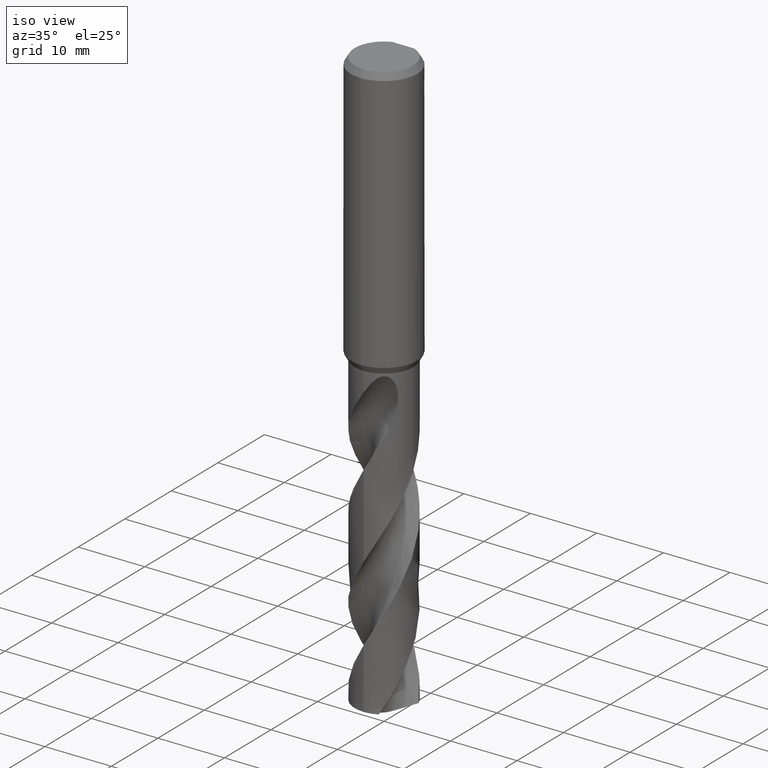
[diagram: clean part render]
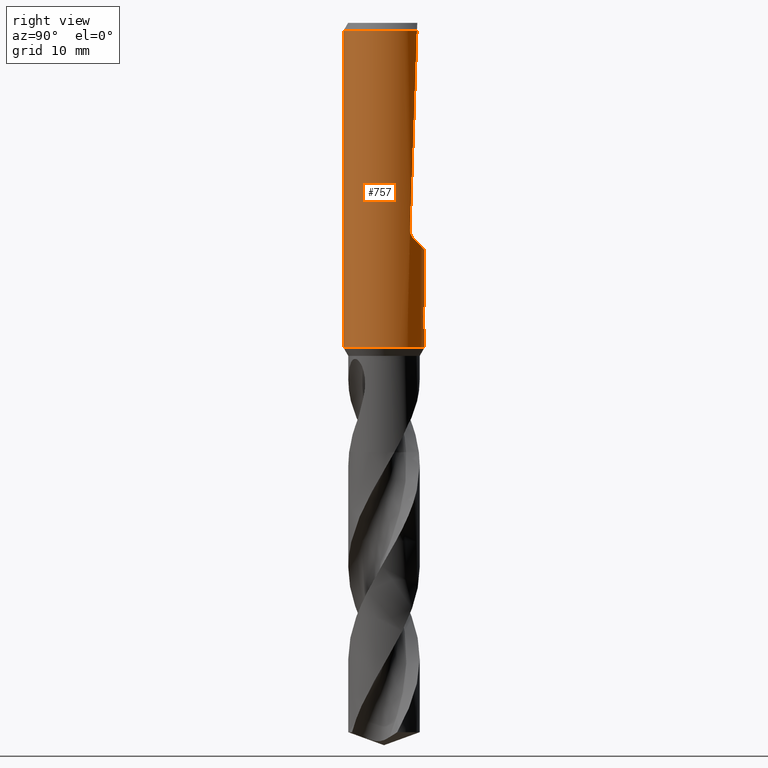
[diagram: tour spotlight — one face highlighted and labeled with its STEP entity id]
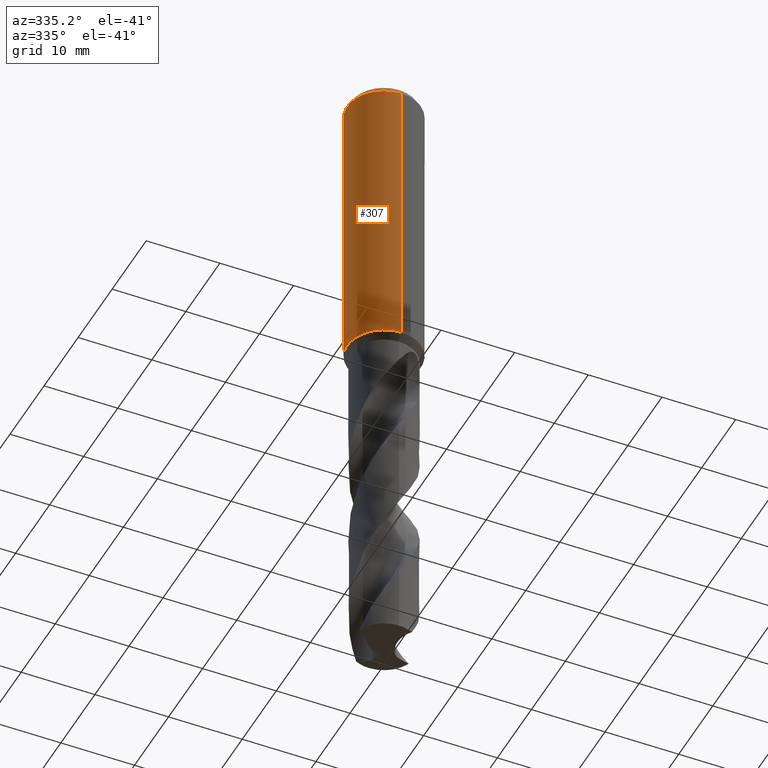
[diagram: tour spotlight — one face highlighted and labeled with its STEP entity id]
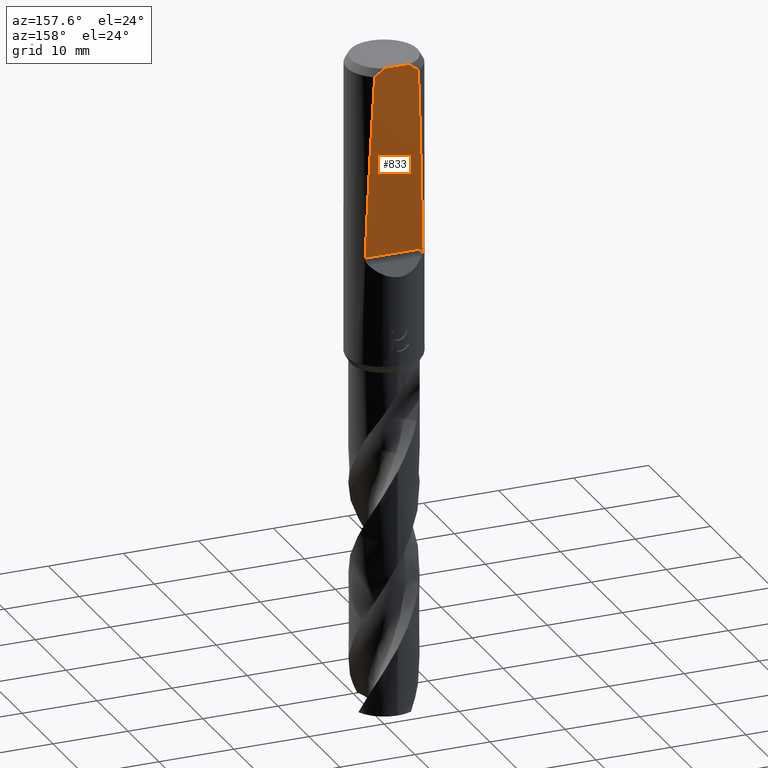
[diagram: tour spotlight — one face highlighted and labeled with its STEP entity id]
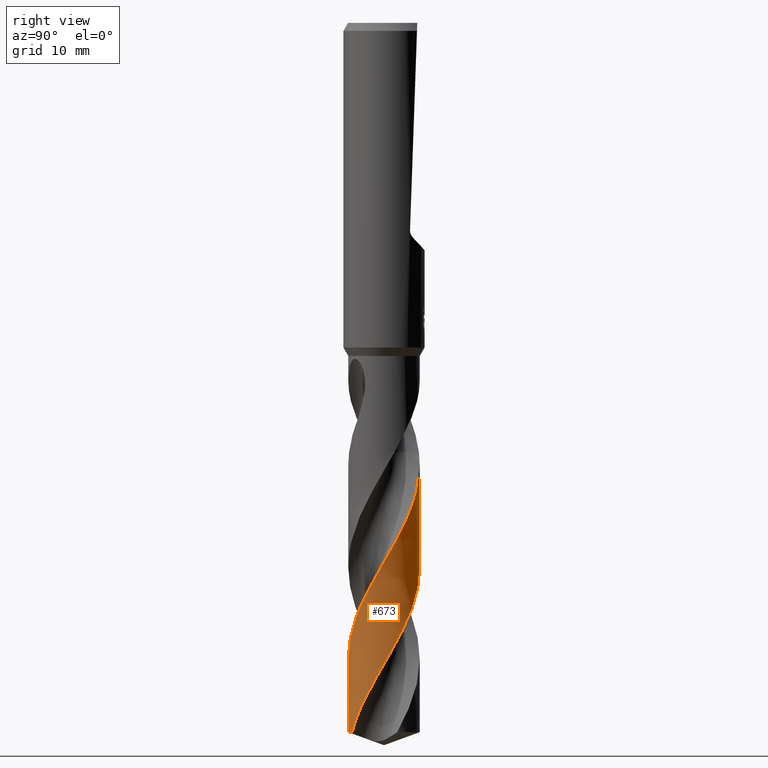
[diagram: tour spotlight — one face highlighted and labeled with its STEP entity id]
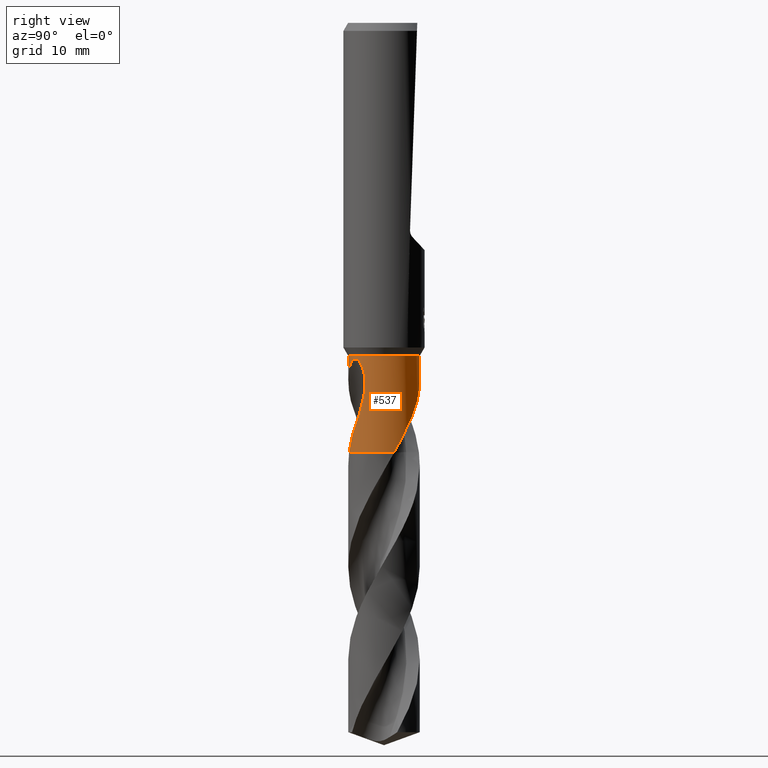
[diagram: tour spotlight — one face highlighted and labeled with its STEP entity id]
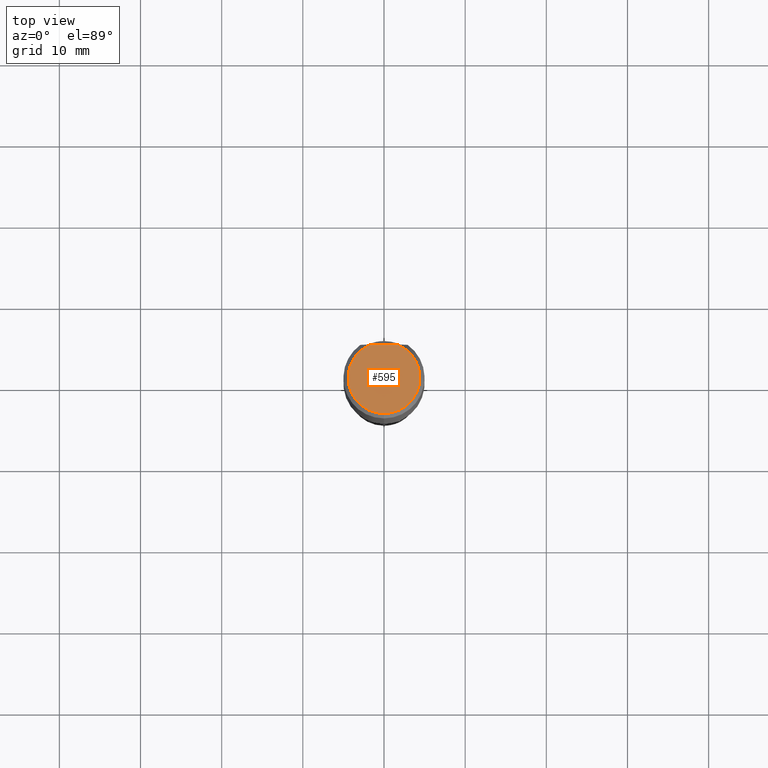
[diagram: tour spotlight — one face highlighted and labeled with its STEP entity id]
A machine part: a face-by-face anatomy tour. The part has 51 B-rep faces; the first image is the clean iso view, then the 6 largest visible faces are spotlighted one at a time (largest first), each with its STEP entity span.

Face 1 — right view, entity #757. In plain terms, the highlighted cylindrical surface (partial cylindrical patch) has radius 5 mm, axis along (-0, -0, 1).
Definition (entity closure, byte-faithful):
#305=VERTEX_POINT('',#868);
#333=VERTEX_POINT('',#899);
#345=VERTEX_POINT('',#911);
#347=EDGE_CURVE('',#507,#551,#913,.T.);
#377=VERTEX_POINT('',#948);
#393=EDGE_CURVE('',#407,#711,#966,.T.);
#407=VERTEX_POINT('',#980);
#433=EDGE_CURVE('',#687,#407,#1009,.T.);
#443=VERTEX_POINT('',#1020);
#457=EDGE_CURVE('',#377,#687,#1034,.T.);
#463=EDGE_CURVE('',#551,#345,#1042,.T.);
#465=VERTEX_POINT('',#1044);
#479=EDGE_CURVE('',#305,#443,#1058,.T.);
#495=EDGE_CURVE('',#465,#555,#1074,.T.);
#501=EDGE_CURVE('',#333,#711,#1080,.T.);
#507=VERTEX_POINT('',#1086);
#551=VERTEX_POINT('',#1133);
#555=VERTEX_POINT('',#1137);
#569=VERTEX_POINT('',#1155);
#583=EDGE_CURVE('',#625,#507,#1170,.T.);
#585=EDGE_CURVE('',#555,#625,#1172,.T.);
#597=EDGE_CURVE('',#377,#465,#1185,.T.);
#603=EDGE_CURVE('',#785,#333,#1191,.T.);
#625=VERTEX_POINT('',#1214);
#633=EDGE_CURVE('',#443,#785,#1222,.T.);
#663=EDGE_CURVE('',#345,#569,#1258,.T.);
#687=VERTEX_POINT('',#1287);
#711=VERTEX_POINT('',#1311);
#757=ADVANCED_FACE('',(#1363),#1364,.T.);
#777=EDGE_CURVE('',#305,#569,#1386,.T.);
#785=VERTEX_POINT('',#1395);
#868=CARTESIAN_POINT('',(-6.12303176911188E-016,5.0,-28.0011862850709));
#899=CARTESIAN_POINT('',(2.91341920609476,4.0634946203432,-1.0));
#911=CARTESIAN_POINT('',(0.799431726384364,4.93567714856332,-35.000000276873));
#913=LINE('',#1623,#1624);
#948=CARTESIAN_POINT('',(-4.2179236924284E-015,5.0,-38.0310253601033));
#966=LINE('',#4296,#4297);
#980=CARTESIAN_POINT('',(6.12303176911189E-016,-5.0,-40.0));
#1009=CIRCLE('',#4473,5.0);
#1020=CARTESIAN_POINT('',(3.54362577285888,3.52742347641027,-26.4220412980564));
#1034=LINE('',#4786,#4787);
#1042=B_SPLINE_CURVE_WITH_KNOTS('',3,(#4796,#4797,#4798,#4799,#4800,#4801,#4802,#4803,#4804,#4805),.UNSPECIFIED.,.F.,.F.,(4,2,2,2,4),(0.618463277568802,0.927694916353203,1.2369265551376,1.54583876733634,1.85475097953508),.UNSPECIFIED.);
#1044=CARTESIAN_POINT('',(0.29010312703583,4.99157692274536,-37.9998328990228));
#1058=ELLIPSE('',#4881,7.33139592819812,5.0);
#1074=ELLIPSE('',#4902,15.2399728668489,5.0);
#1080=CIRCLE('',#4911,5.0);
#1086=CARTESIAN_POINT('',(1.33721006514658,4.81786978255646,-37.2901657003257));
#1133=CARTESIAN_POINT('',(1.33721006514658,4.81786978255647,-35.5150484364821));
#1137=CARTESIAN_POINT('',(0.873560781758957,4.92309776061503,-36.3198931596091));
#1155=CARTESIAN_POINT('',(-9.82055749138764E-015,5.0,-36.0232688117743));
#1170=B_SPLINE_CURVE_WITH_KNOTS('',3,(#5165,#5166,#5167,#5168,#5169,#5170,#5171,#5172,#5173,#5174),.UNSPECIFIED.,.F.,.F.,(4,2,2,2,4),(8.03978938391207,8.34870158568316,8.65761378745426,8.96684541549285,9.27607704353144),.UNSPECIFIED.);
#1172=LINE('',#5177,#5178);
#1185=B_SPLINE_CURVE_WITH_KNOTS('',3,(#5286,#5287,#5288,#5289,#5290,#5291,#5292,#5293,#5294,#5295,#5296,#5297,#5298,#5299,#5300,#5301),.UNSPECIFIED.,.F.,.F.,(4,2,2,2,2,2,2,4),(5.87517564836087,6.18447732711524,6.49384941721167,6.80322150730809,7.11259359740452,7.42196568750094,7.73087791711931,8.03979014673767),.UNSPECIFIED.);
#1191=ELLIPSE('',#5342,143.26854173922,5.0);
#1214=CARTESIAN_POINT('',(0.873560781758956,4.92309776061503,-37.7587351791531));
#1222=B_SPLINE_CURVE_WITH_KNOTS('',3,(#5403,#5404,#5405,#5406,#5407,#5408,#5409,#5410,#5411,#5412),.UNSPECIFIED.,.F.,.F.,(4,2,2,2,4),(13.601244724545,13.9877201562878,14.2781014313783,14.5684827064689,14.8588639815594),.UNSPECIFIED.);
#1258=B_SPLINE_CURVE_WITH_KNOTS('',3,(#6075,#6076,#6077,#6078,#6079,#6080,#6081,#6082,#6083,#6084,#6085,#6086,#6087,#6088,#6089,#6090,#6091,#6092,#6093,#6094,#6095,#6096,#6097,#6098,#6099,#6100,#6101),.UNSPECIFIED.,.F.,.F.,(4,2,3,2,2,2,2,2,2,2,2,2,4),(-0.542486104801738,-0.271243052400869,0.0,0.271243052400869,0.542486104801738,0.814298814936944,1.08611152507215,1.35696845964793,1.62782539422372,1.89896433698445,2.17010327974519,2.44124222250593,2.71238116526667),.UNSPECIFIED.);
#1287=CARTESIAN_POINT('',(0.0,5.0,-40.0));
#1311=CARTESIAN_POINT('',(6.12303176911189E-016,-5.0,-1.0));
#1363=FACE_OUTER_BOUND('',#7732,.T.);
#1364=CYLINDRICAL_SURFACE('',#7733,5.0);
#1386=LINE('',#7782,#7783);
#1395=CARTESIAN_POINT('',(3.83705374969661,3.20577892593035,-25.5617638699384));
#1623=CARTESIAN_POINT('',(1.33721006514658,4.81786978255646,-36.4026070684039));
#1624=VECTOR('',#8611,1.0);
#4296=CARTESIAN_POINT('',(6.12303176911189E-016,-5.0,-20.5));
#4297=VECTOR('',#8659,1.0);
#4473=AXIS2_PLACEMENT_3D('',#8696,#8697,#8698);
#4786=CARTESIAN_POINT('',(-6.12303176911189E-016,5.0,-20.5));
#4787=VECTOR('',#8708,1.0);
#4796=CARTESIAN_POINT('',(1.47544634459503,4.77734843655151,-35.7772211678144));
#4797=CARTESIAN_POINT('',(1.43377097583397,4.79021953600577,-35.6770080394811));
#4798=CARTESIAN_POINT('',(1.38199542398865,4.8056132724731,-35.5811155297459));
#4799=CARTESIAN_POINT('',(1.26262396572432,4.83834796156109,-35.4039520264488));
#4800=CARTESIAN_POINT('',(1.19501792490561,4.8556548500921,-35.3226815690952));
#4801=CARTESIAN_POINT('',(1.05119213349515,4.88880718633437,-35.178908059153));
#4802=CARTESIAN_POINT('',(0.969955783216372,4.90584149133193,-35.1113633587199));
#4803=CARTESIAN_POINT('',(0.792829662772183,4.93756175507685,-34.9920776587655));
#4804=CARTESIAN_POINT('',(0.696940397087141,4.95221768350352,-34.9403279265819));
#4805=CARTESIAN_POINT('',(0.596736525802593,4.96426283739822,-34.8986787609541));
#4881=AXIS2_PLACEMENT_3D('',#8729,#8730,#8731);
#4902=AXIS2_PLACEMENT_3D('',#8744,#8745,#8746);
#4911=AXIS2_PLACEMENT_3D('',#8748,#8749,#8750);
#5165=CARTESIAN_POINT('',(0.596736548110758,4.96426283471664,-37.9065353597382));
#5166=CARTESIAN_POINT('',(0.696940415976904,4.95221768077604,-37.8648861955132));
#5167=CARTESIAN_POINT('',(0.792829678386026,4.93756175251447,-37.8131364650754));
#5168=CARTESIAN_POINT('',(0.969955792779445,4.90584148938556,-37.6938507691423));
#5169=CARTESIAN_POINT('',(1.05119214028325,4.88880718483703,-37.6263060709848));
#5170=CARTESIAN_POINT('',(1.1950179267128,4.85565484960812,-37.4825325659411));
#5171=CARTESIAN_POINT('',(1.26262396516471,4.83834796167932,-37.4012621113954));
#5172=CARTESIAN_POINT('',(1.38199541925443,4.80561327380657,-37.2240986142183));
#5173=CARTESIAN_POINT('',(1.4337709692914,4.79021953794996,-37.1282061077952));
#5174=CARTESIAN_POINT('',(1.47544633659597,4.77734843902196,-37.0279929829259));
#5177=CARTESIAN_POINT('',(0.873560781758957,4.92309776061503,-37.0393141693811));
#5178=VECTOR('',#8871,1.0);
#5286=CARTESIAN_POINT('',(-1.37919625933141,4.80601890115366,-37.3124404256203));
#5287=CARTESIAN_POINT('',(-1.31957521374487,4.82312851403775,-37.4009601597598));
#5288=CARTESIAN_POINT('',(-1.25205684175205,4.84126211135571,-37.4821654513649));
#5289=CARTESIAN_POINT('',(-1.10836495207318,4.87616599259845,-37.6259115514073));
#5290=CARTESIAN_POINT('',(-1.0271524301646,4.89418890879516,-37.693486795378));
#5291=CARTESIAN_POINT('',(-0.850055905397219,4.9280353232664,-37.8128453591325));
#5292=CARTESIAN_POINT('',(-0.754172188044363,4.94382885968066,-37.8646375967458));
#5293=CARTESIAN_POINT('',(-0.553725999780852,4.97027232652294,-37.9480281920328));
#5294=CARTESIAN_POINT('',(-0.448990720596507,4.98092390938096,-37.9796924022892));
#5295=CARTESIAN_POINT('',(-0.237871423561604,4.99545922254228,-38.0213202804398));
#5296=CARTESIAN_POINT('',(-0.13148454027928,4.99933459384723,-38.0312723335086));
#5297=CARTESIAN_POINT('',(0.0746069172274575,5.00050365281921,-38.0312723335086));
#5298=CARTESIAN_POINT('',(0.180879006433096,4.99784409598263,-38.021349312763));
#5299=CARTESIAN_POINT('',(0.391840688075154,4.98574204084828,-37.9798000876985));
#5300=CARTESIAN_POINT('',(0.496532945230264,4.97630796240248,-37.9481849619546));
#5301=CARTESIAN_POINT('',(0.596736821506944,4.96426280185264,-37.9065357940623));
#5342=AXIS2_PLACEMENT_3D('',#8883,#8884,#8885);
#5403=CARTESIAN_POINT('',(3.5124810915168,3.55843737920691,-26.4540846778413));
#5404=CARTESIAN_POINT('',(3.59343628541809,3.47852767883522,-26.3745350059696));
#5405=CARTESIAN_POINT('',(3.66218514708417,3.40501531873085,-26.2774092731815));
#5406=CARTESIAN_POINT('',(3.75097198391672,3.30657581587786,-26.0948429812535));
#5407=CARTESIAN_POINT('',(3.78395006128267,3.26846099380161,-26.0018104981297));
#5408=CARTESIAN_POINT('',(3.82727183139471,3.21762421227073,-25.8046209150592));
#5409=CARTESIAN_POINT('',(3.83766437316493,3.20504791835327,-25.7004370243449));
#5410=CARTESIAN_POINT('',(3.83766437316493,3.20504791835327,-25.5068495076179));
#5411=CARTESIAN_POINT('',(3.82727183139471,3.21762421227073,-25.4026656169036));
#5412=CARTESIAN_POINT('',(3.80561094633861,3.24304260303619,-25.3040708253683));
#6075=CARTESIAN_POINT('',(0.665122770091172,4.95556371169883,-34.8135963457478));
#6076=CARTESIAN_POINT('',(0.728735196954596,4.94702581852882,-34.8772777273236));
#6077=CARTESIAN_POINT('',(0.783964166103465,4.93829748078097,-34.9579436035979));
#6078=CARTESIAN_POINT('',(0.857301933462898,4.92609533329604,-35.1349114173306));
#6079=CARTESIAN_POINT('',(0.875400981188567,4.92277087849253,-35.2312276617865));
#6080=CARTESIAN_POINT('',(0.875400981188567,4.92277087849253,-35.3216420125868));
#6081=CARTESIAN_POINT('',(0.875400981188567,4.92277087849253,-35.4120563633871));
#6082=CARTESIAN_POINT('',(0.857301933462898,4.92609533329604,-35.5083726078429));
#6083=CARTESIAN_POINT('',(0.783964166103465,4.93829748078097,-35.6853404215757));
#6084=CARTESIAN_POINT('',(0.728735196954596,4.94702581852882,-35.76600629785));
#6085=CARTESIAN_POINT('',(0.601376746032753,4.96411953593411,-35.8935028030135));
#6086=CARTESIAN_POINT('',(0.520641197115554,4.97361399538109,-35.9488552844728));
#6087=CARTESIAN_POINT('',(0.343503822480858,4.98897870858442,-36.0223670116056));
#6088=CARTESIAN_POINT('',(0.247086219827461,4.9947129574863,-36.0405166027747));
#6089=CARTESIAN_POINT('',(0.0662849978754683,5.00037576555244,-36.0405166027747));
#6090=CARTESIAN_POINT('',(-0.0299853354073752,5.00069421157822,-36.022481035651));
#6091=CARTESIAN_POINT('',(-0.207042529230845,4.99649628332508,-35.9491606175219));
#6092=CARTESIAN_POINT('',(-0.287834149954029,4.99211780487336,-35.8938794313977));
#6093=CARTESIAN_POINT('',(-0.415469449620835,4.98311973872716,-35.7663325263823));
#6094=CARTESIAN_POINT('',(-0.470822894462521,4.97792007270922,-35.6855206130663));
#6095=CARTESIAN_POINT('',(-0.544264412763406,4.97042641093864,-35.5083690868499));
#6096=CARTESIAN_POINT('',(-0.562348199187247,4.96827580785033,-35.4120216601737));
#6097=CARTESIAN_POINT('',(-0.562348199187247,4.96827580785033,-35.2312623649999));
#6098=CARTESIAN_POINT('',(-0.544264412763406,4.97042641093864,-35.1349149383237));
#6099=CARTESIAN_POINT('',(-0.470822894462521,4.97792007270922,-34.9577634121072));
#6100=CARTESIAN_POINT('',(-0.415469449620836,4.98311973872716,-34.8769514987913));
#6101=CARTESIAN_POINT('',(-0.351618594554054,4.98762111271133,-34.8131448640467));
#7732=EDGE_LOOP('',(#9064,#9065,#9066,#9067,#9068,#9069,#9070,#9071,#9072,#9073,#9074,#9075,#9076,#9077,#9078));
#7733=AXIS2_PLACEMENT_3D('',#9079,#9080,#9081);
#7782=CARTESIAN_POINT('',(-6.12303176911189E-016,5.0,-20.5));
#7783=VECTOR('',#9101,1.0);
#8611=DIRECTION('',(-0.0,-0.0,1.0));
#8659=DIRECTION('',(-0.0,-0.0,1.0));
#8696=CARTESIAN_POINT('',(0.0,0.0,-40.0));
#8697=DIRECTION('',(0.0,0.0,-1.0));
#8698=DIRECTION('',(0.0,1.0,0.0));
#8708=DIRECTION('',(0.0,0.0,-1.0));
#8729=CARTESIAN_POINT('',(0.0,0.0,-22.6393427349475));
#8730=DIRECTION('',(0.0,-0.73135370161917,-0.681998360062499));
#8731=DIRECTION('',(0.0,0.681998360062499,-0.73135370161917));
#8744=CARTESIAN_POINT('',(0.0,0.0,-38.8351219173269));
#8745=DIRECTION('',(0.944648353914092,0.0,-0.328084573619969));
#8746=DIRECTION('',(0.328084573619969,-0.0,0.944648353914092));
#8748=CARTESIAN_POINT('',(0.0,0.0,-1.0));
#8749=DIRECTION('',(0.0,0.0,-1.0));
#8750=DIRECTION('',(0.0,1.0,0.0));
#8871=DIRECTION('',(0.0,0.0,-1.0));
#8883=CARTESIAN_POINT('',(0.0,0.0,-117.363261161914));
#8884=DIRECTION('',(0.0,-0.999390827019096,0.0348994967025007));
#8885=DIRECTION('',(0.0,0.0348994967025007,0.999390827019096));
#9064=ORIENTED_EDGE('',*,*,#777,.F.);
#9065=ORIENTED_EDGE('',*,*,#479,.T.);
#9066=ORIENTED_EDGE('',*,*,#633,.T.);
#9067=ORIENTED_EDGE('',*,*,#603,.T.);
#9068=ORIENTED_EDGE('',*,*,#501,.T.);
#9069=ORIENTED_EDGE('',*,*,#393,.F.);
#9070=ORIENTED_EDGE('',*,*,#433,.F.);
#9071=ORIENTED_EDGE('',*,*,#457,.F.);
#9072=ORIENTED_EDGE('',*,*,#597,.T.);
#9073=ORIENTED_EDGE('',*,*,#495,.T.);
#9074=ORIENTED_EDGE('',*,*,#585,.T.);
#9075=ORIENTED_EDGE('',*,*,#583,.T.);
#9076=ORIENTED_EDGE('',*,*,#347,.T.);
#9077=ORIENTED_EDGE('',*,*,#463,.T.);
#9078=ORIENTED_EDGE('',*,*,#663,.T.);
#9079=CARTESIAN_POINT('',(0.0,0.0,-20.5));
#9080=DIRECTION('',(-0.0,-0.0,1.0));
#9081=DIRECTION('',(0.0,1.0,0.0));
#9101=DIRECTION('',(0.0,0.0,-1.0));

Face 2 — auxiliary view, entity #307. In plain terms, the highlighted cylindrical surface (partial cylindrical patch) has radius 5 mm, axis along (-0, -0, 1).
Definition (entity closure, byte-faithful):
#305=VERTEX_POINT('',#868);
#307=ADVANCED_FACE('',(#870),#871,.T.);
#363=EDGE_CURVE('',#759,#487,#933,.T.);
#365=VERTEX_POINT('',#935);
#373=VERTEX_POINT('',#944);
#377=VERTEX_POINT('',#948);
#381=EDGE_CURVE('',#373,#365,#952,.T.);
#393=EDGE_CURVE('',#407,#711,#966,.T.);
#403=VERTEX_POINT('',#976);
#407=VERTEX_POINT('',#980);
#455=VERTEX_POINT('',#1032);
#457=EDGE_CURVE('',#377,#687,#1034,.T.);
#481=EDGE_CURVE('',#365,#305,#1060,.T.);
#483=EDGE_CURVE('',#711,#615,#1062,.T.);
#487=VERTEX_POINT('',#1066);
#535=VERTEX_POINT('',#1115);
#559=EDGE_CURVE('',#615,#373,#1142,.T.);
#569=VERTEX_POINT('',#1155);
#579=EDGE_CURVE('',#455,#403,#1165,.T.);
#593=EDGE_CURVE('',#569,#535,#1180,.T.);
#615=VERTEX_POINT('',#1203);
#647=EDGE_CURVE('',#403,#377,#1238,.T.);
#687=VERTEX_POINT('',#1287);
#689=EDGE_CURVE('',#407,#687,#1289,.T.);
#711=VERTEX_POINT('',#1311);
#759=VERTEX_POINT('',#1366);
#777=EDGE_CURVE('',#305,#569,#1386,.T.);
#781=EDGE_CURVE('',#807,#759,#1390,.T.);
#787=EDGE_CURVE('',#535,#807,#1397,.T.);
#805=EDGE_CURVE('',#487,#455,#1416,.T.);
#807=VERTEX_POINT('',#1418);
#868=CARTESIAN_POINT('',(-6.12303176911188E-016,5.0,-28.0011862850709));
#870=FACE_OUTER_BOUND('',#1476,.T.);
#871=CYLINDRICAL_SURFACE('',#1477,5.0);
#933=B_SPLINE_CURVE_WITH_KNOTS('',3,(#3067,#3068,#3069,#3070,#3071,#3072,#3073,#3074,#3075,#3076,#3077,#3078,#3079,#3080),.UNSPECIFIED.,.F.,.F.,(4,2,2,2,2,2,4),(3.1333306003147,3.58067338374496,4.02801616717522,4.47535895060548,4.92178692976237,5.36821490891926,5.81712521768469),.UNSPECIFIED.);
#935=CARTESIAN_POINT('',(-3.54362577285888,3.52742347641027,-26.4220412980564));
#944=CARTESIAN_POINT('',(-3.83705374969661,3.20577892593035,-25.5617638699384));
#948=CARTESIAN_POINT('',(-4.2179236924284E-015,5.0,-38.0310253601033));
#952=B_SPLINE_CURVE_WITH_KNOTS('',3,(#3698,#3699,#3700,#3701,#3702,#3703,#3704,#3705,#3706,#3707),.UNSPECIFIED.,.F.,.F.,(4,2,2,2,4),(4.56577962706575,4.85616090215628,5.14654217724682,5.43692345233735,5.82339888408011),.UNSPECIFIED.);
#966=LINE('',#4296,#4297);
#976=CARTESIAN_POINT('',(-1.337052752443,4.81791344226778,-37.3720803908795));
#980=CARTESIAN_POINT('',(6.12303176911189E-016,-5.0,-40.0));
#1032=CARTESIAN_POINT('',(-9.69542443632267E-016,5.0,-36.7128911336578));
#1034=LINE('',#4786,#4787);
#1060=ELLIPSE('',#4884,7.33139592819812,5.0);
#1062=CIRCLE('',#4887,5.0);
#1066=CARTESIAN_POINT('',(-1.03127136200798E-015,5.0,-36.5000801551882));
#1115=CARTESIAN_POINT('',(-0.486378944383044,4.97628732314171,-35.6432837483006));
#1142=ELLIPSE('',#5122,143.26854173922,5.0);
#1155=CARTESIAN_POINT('',(-9.82055749138764E-015,5.0,-36.0232688117743));
#1165=ELLIPSE('',#5159,5.5746421602143,5.0);
#1180=B_SPLINE_CURVE_WITH_KNOTS('',3,(#5254,#5255,#5256,#5257,#5258,#5259,#5260,#5261,#5262,#5263,#5264,#5265,#5266,#5267,#5268,#5269,#5270,#5271,#5272,#5273,#5274,#5275,#5276,#5277,#5278,#5279,#5280),.UNSPECIFIED.,.F.,.F.,(4,2,3,2,2,2,2,2,2,2,2,2,4),(-0.542486104801738,-0.271243052400869,0.0,0.271243052400869,0.542486104801738,0.814298814936944,1.08611152507215,1.35696845964793,1.62782539422372,1.89896433698445,2.17010327974519,2.44124222250593,2.71238116526667),.UNSPECIFIED.);
#1203=CARTESIAN_POINT('',(-2.91341920609476,4.0634946203432,-1.0));
#1238=B_SPLINE_CURVE_WITH_KNOTS('',3,(#5453,#5454,#5455,#5456,#5457,#5458,#5459,#5460,#5461,#5462,#5463,#5464,#5465,#5466,#5467,#5468),.UNSPECIFIED.,.F.,.F.,(4,2,2,2,2,2,2,4),(5.87517564836087,6.18447732711524,6.49384941721167,6.80322150730809,7.11259359740452,7.42196568750094,7.73087791711931,8.03979014673767),.UNSPECIFIED.);
#1287=CARTESIAN_POINT('',(0.0,5.0,-40.0));
#1289=CIRCLE('',#6143,5.0);
#1311=CARTESIAN_POINT('',(6.12303176911189E-016,-5.0,-1.0));
#1366=CARTESIAN_POINT('',(-1.0350734039088,4.89168918151191,-35.3171221986971));
#1386=LINE('',#7782,#7783);
#1390=CIRCLE('',#7788,5.0);
#1397=B_SPLINE_CURVE_WITH_KNOTS('',3,(#8011,#8012,#8013,#8014,#8015,#8016,#8017,#8018,#8019,#8020,#8021,#8022,#8023,#8024,#8025,#8026,#8027,#8028,#8029,#8030,#8031,#8032,#8033,#8034,#8035,#8036,#8037),.UNSPECIFIED.,.F.,.F.,(4,2,3,2,2,2,2,2,2,2,2,2,4),(-0.542486104801738,-0.271243052400869,0.0,0.271243052400869,0.542486104801738,0.814298814936944,1.08611152507215,1.35696845964793,1.62782539422372,1.89896433698445,2.17010327974519,2.44124222250593,2.71238116526667),.UNSPECIFIED.);
#1416=LINE('',#8061,#8062);
#1418=CARTESIAN_POINT('',(-0.562333990228013,4.96827741611056,-35.3171221986971));
#1476=EDGE_LOOP('',(#8564,#8565,#8566,#8567,#8568,#8569,#8570,#8571,#8572,#8573,#8574,#8575,#8576,#8577,#8578));
#1477=AXIS2_PLACEMENT_3D('',#8579,#8580,#8581);
#3067=CARTESIAN_POINT('',(-0.94469265800956,4.90994458032907,-34.8726918261735));
#3068=CARTESIAN_POINT('',(-1.00520381961469,4.89830199881157,-35.0184504386447));
#3069=CARTESIAN_POINT('',(-1.03510901790186,4.89168164551397,-35.1771875995894));
#3070=CARTESIAN_POINT('',(-1.03510901790186,4.89168164551397,-35.4754161218762));
#3071=CARTESIAN_POINT('',(-1.00520381961469,4.89830199881157,-35.6341532828209));
#3072=CARTESIAN_POINT('',(-0.884181496404448,4.92158716184659,-35.9256705077633));
#3073=CARTESIAN_POINT('',(-0.793087151052211,4.93783860177885,-36.058492898329));
#3074=CARTESIAN_POINT('',(-0.583306946064695,4.96698544190891,-36.2680190096183));
#3075=CARTESIAN_POINT('',(-0.4505605241988,4.98179488059623,-36.3589053581256));
#3076=CARTESIAN_POINT('',(-0.159315965562919,4.99959032724121,-36.4795914963682));
#3077=CARTESIAN_POINT('',(-0.000786407488332613,5.0022138695964,-36.5093686300866));
#3078=CARTESIAN_POINT('',(0.297528991236319,4.99338238693841,-36.5093686300866));
#3079=CARTESIAN_POINT('',(0.45644235283975,4.98128588348605,-36.4792943689047));
#3080=CARTESIAN_POINT('',(0.602168559078807,4.96360685655673,-36.4187026676641));
#3698=CARTESIAN_POINT('',(-3.80561094633861,3.24304260303619,-25.3040708253683));
#3699=CARTESIAN_POINT('',(-3.82727183139471,3.21762421227073,-25.4026656169036));
#3700=CARTESIAN_POINT('',(-3.83766437316493,3.20504791835327,-25.5068495076179));
#3701=CARTESIAN_POINT('',(-3.83766437316493,3.20504791835327,-25.7004370243449));
#3702=CARTESIAN_POINT('',(-3.82727183139471,3.21762421227073,-25.8046209150592));
#3703=CARTESIAN_POINT('',(-3.78395006128267,3.26846099380161,-26.0018104981297));
#3704=CARTESIAN_POINT('',(-3.75097198391672,3.30657581587786,-26.0948429812535));
#3705=CARTESIAN_POINT('',(-3.66218514708417,3.40501531873085,-26.2774092731815));
#3706=CARTESIAN_POINT('',(-3.59343628541809,3.47852767883522,-26.3745350059696));
#3707=CARTESIAN_POINT('',(-3.5124810915168,3.55843737920691,-26.4540846778413));
#4296=CARTESIAN_POINT('',(6.12303176911189E-016,-5.0,-20.5));
#4297=VECTOR('',#8659,1.0);
#4786=CARTESIAN_POINT('',(-6.12303176911189E-016,5.0,-20.5));
#4787=VECTOR('',#8708,1.0);
#4884=AXIS2_PLACEMENT_3D('',#8732,#8733,#8734);
#4887=AXIS2_PLACEMENT_3D('',#8735,#8736,#8737);
#5122=AXIS2_PLACEMENT_3D('',#8811,#8812,#8813);
#5159=AXIS2_PLACEMENT_3D('',#8861,#8862,#8863);
#5254=CARTESIAN_POINT('',(0.665122770091172,4.95556371169883,-34.8135963457478));
#5255=CARTESIAN_POINT('',(0.728735196954596,4.94702581852882,-34.8772777273236));
#5256=CARTESIAN_POINT('',(0.783964166103465,4.93829748078097,-34.9579436035979));
#5257=CARTESIAN_POINT('',(0.857301933462898,4.92609533329604,-35.1349114173306));
#5258=CARTESIAN_POINT('',(0.875400981188567,4.92277087849253,-35.2312276617865));
#5259=CARTESIAN_POINT('',(0.875400981188567,4.92277087849253,-35.3216420125868));
#5260=CARTESIAN_POINT('',(0.875400981188567,4.92277087849253,-35.4120563633871));
#5261=CARTESIAN_POINT('',(0.857301933462898,4.92609533329604,-35.5083726078429));
#5262=CARTESIAN_POINT('',(0.783964166103465,4.93829748078097,-35.6853404215757));
#5263=CARTESIAN_POINT('',(0.728735196954596,4.94702581852882,-35.76600629785));
#5264=CARTESIAN_POINT('',(0.601376746032753,4.96411953593411,-35.8935028030135));
#5265=CARTESIAN_POINT('',(0.520641197115554,4.97361399538109,-35.9488552844728));
#5266=CARTESIAN_POINT('',(0.343503822480858,4.98897870858442,-36.0223670116056));
#5267=CARTESIAN_POINT('',(0.247086219827461,4.9947129574863,-36.0405166027747));
#5268=CARTESIAN_POINT('',(0.0662849978754683,5.00037576555244,-36.0405166027747));
#5269=CARTESIAN_POINT('',(-0.0299853354073752,5.00069421157822,-36.022481035651));
#5270=CARTESIAN_POINT('',(-0.207042529230845,4.99649628332508,-35.9491606175219));
#5271=CARTESIAN_POINT('',(-0.287834149954029,4.99211780487336,-35.8938794313977));
#5272=CARTESIAN_POINT('',(-0.415469449620835,4.98311973872716,-35.7663325263823));
#5273=CARTESIAN_POINT('',(-0.470822894462521,4.97792007270922,-35.6855206130663));
#5274=CARTESIAN_POINT('',(-0.544264412763406,4.97042641093864,-35.5083690868499));
#5275=CARTESIAN_POINT('',(-0.562348199187247,4.96827580785033,-35.4120216601737));
#5276=CARTESIAN_POINT('',(-0.562348199187247,4.96827580785033,-35.2312623649999));
#5277=CARTESIAN_POINT('',(-0.544264412763406,4.97042641093864,-35.1349149383237));
#5278=CARTESIAN_POINT('',(-0.470822894462521,4.97792007270922,-34.9577634121072));
#5279=CARTESIAN_POINT('',(-0.415469449620836,4.98311973872716,-34.8769514987913));
#5280=CARTESIAN_POINT('',(-0.351618594554054,4.98762111271133,-34.8131448640467));
#5453=CARTESIAN_POINT('',(-1.37919625933141,4.80601890115366,-37.3124404256203));
#5454=CARTESIAN_POINT('',(-1.31957521374487,4.82312851403775,-37.4009601597598));
#5455=CARTESIAN_POINT('',(-1.25205684175205,4.84126211135571,-37.4821654513649));
#5456=CARTESIAN_POINT('',(-1.10836495207318,4.87616599259845,-37.6259115514073));
#5457=CARTESIAN_POINT('',(-1.0271524301646,4.89418890879516,-37.693486795378));
#5458=CARTESIAN_POINT('',(-0.850055905397219,4.9280353232664,-37.8128453591325));
#5459=CARTESIAN_POINT('',(-0.754172188044363,4.94382885968066,-37.8646375967458));
#5460=CARTESIAN_POINT('',(-0.553725999780852,4.97027232652294,-37.9480281920328));
#5461=CARTESIAN_POINT('',(-0.448990720596507,4.98092390938096,-37.9796924022892));
#5462=CARTESIAN_POINT('',(-0.237871423561604,4.99545922254228,-38.0213202804398));
#5463=CARTESIAN_POINT('',(-0.13148454027928,4.99933459384723,-38.0312723335086));
#5464=CARTESIAN_POINT('',(0.0746069172274575,5.00050365281921,-38.0312723335086));
#5465=CARTESIAN_POINT('',(0.180879006433096,4.99784409598263,-38.021349312763));
#5466=CARTESIAN_POINT('',(0.391840688075154,4.98574204084828,-37.9798000876985));
#5467=CARTESIAN_POINT('',(0.496532945230264,4.97630796240248,-37.9481849619546));
#5468=CARTESIAN_POINT('',(0.596736821506944,4.96426280185264,-37.9065357940623));
#6143=AXIS2_PLACEMENT_3D('',#9002,#9003,#9004);
#7782=CARTESIAN_POINT('',(-6.12303176911189E-016,5.0,-20.5));
#7783=VECTOR('',#9101,1.0);
#7788=AXIS2_PLACEMENT_3D('',#9102,#9103,#9104);
#8011=CARTESIAN_POINT('',(0.665122770091172,4.95556371169883,-34.8135963457478));
#8012=CARTESIAN_POINT('',(0.728735196954596,4.94702581852882,-34.8772777273236));
#8013=CARTESIAN_POINT('',(0.783964166103465,4.93829748078097,-34.9579436035979));
#8014=CARTESIAN_POINT('',(0.857301933462898,4.92609533329604,-35.1349114173306));
#8015=CARTESIAN_POINT('',(0.875400981188567,4.92277087849253,-35.2312276617865));
#8016=CARTESIAN_POINT('',(0.875400981188567,4.92277087849253,-35.3216420125868));
#8017=CARTESIAN_POINT('',(0.875400981188567,4.92277087849253,-35.4120563633871));
#8018=CARTESIAN_POINT('',(0.857301933462898,4.92609533329604,-35.5083726078429));
#8019=CARTESIAN_POINT('',(0.783964166103465,4.93829748078097,-35.6853404215757));
#8020=CARTESIAN_POINT('',(0.728735196954596,4.94702581852882,-35.76600629785));
#8021=CARTESIAN_POINT('',(0.601376746032753,4.96411953593411,-35.8935028030135));
#8022=CARTESIAN_POINT('',(0.520641197115554,4.97361399538109,-35.9488552844728));
#8023=CARTESIAN_POINT('',(0.343503822480858,4.98897870858442,-36.0223670116056));
#8024=CARTESIAN_POINT('',(0.247086219827461,4.9947129574863,-36.0405166027747));
#8025=CARTESIAN_POINT('',(0.0662849978754683,5.00037576555244,-36.0405166027747));
#8026=CARTESIAN_POINT('',(-0.0299853354073752,5.00069421157822,-36.022481035651));
#8027=CARTESIAN_POINT('',(-0.207042529230845,4.99649628332508,-35.9491606175219));
#8028=CARTESIAN_POINT('',(-0.287834149954029,4.99211780487336,-35.8938794313977));
#8029=CARTESIAN_POINT('',(-0.415469449620835,4.98311973872716,-35.7663325263823));
#8030=CARTESIAN_POINT('',(-0.470822894462521,4.97792007270922,-35.6855206130663));
#8031=CARTESIAN_POINT('',(-0.544264412763406,4.97042641093864,-35.5083690868499));
#8032=CARTESIAN_POINT('',(-0.562348199187247,4.96827580785033,-35.4120216601737));
#8033=CARTESIAN_POINT('',(-0.562348199187247,4.96827580785033,-35.2312623649999));
#8034=CARTESIAN_POINT('',(-0.544264412763406,4.97042641093864,-35.1349149383237));
#8035=CARTESIAN_POINT('',(-0.470822894462521,4.97792007270922,-34.9577634121072));
#8036=CARTESIAN_POINT('',(-0.415469449620836,4.98311973872716,-34.8769514987913));
#8037=CARTESIAN_POINT('',(-0.351618594554054,4.98762111271133,-34.8131448640467));
#8061=CARTESIAN_POINT('',(-6.12303176911189E-016,5.0,-20.5));
#8062=VECTOR('',#9125,1.0);
#8564=ORIENTED_EDGE('',*,*,#777,.T.);
#8565=ORIENTED_EDGE('',*,*,#593,.T.);
#8566=ORIENTED_EDGE('',*,*,#787,.T.);
#8567=ORIENTED_EDGE('',*,*,#781,.T.);
#8568=ORIENTED_EDGE('',*,*,#363,.T.);
#8569=ORIENTED_EDGE('',*,*,#805,.T.);
#8570=ORIENTED_EDGE('',*,*,#579,.T.);
#8571=ORIENTED_EDGE('',*,*,#647,.T.);
#8572=ORIENTED_EDGE('',*,*,#457,.T.);
#8573=ORIENTED_EDGE('',*,*,#689,.F.);
#8574=ORIENTED_EDGE('',*,*,#393,.T.);
#8575=ORIENTED_EDGE('',*,*,#483,.T.);
#8576=ORIENTED_EDGE('',*,*,#559,.T.);
#8577=ORIENTED_EDGE('',*,*,#381,.T.);
#8578=ORIENTED_EDGE('',*,*,#481,.T.);
#8579=CARTESIAN_POINT('',(0.0,0.0,-20.5));
#8580=DIRECTION('',(-0.0,-0.0,1.0));
#8581=DIRECTION('',(0.0,1.0,0.0));
#8659=DIRECTION('',(-0.0,-0.0,1.0));
#8708=DIRECTION('',(0.0,0.0,-1.0));
#8732=CARTESIAN_POINT('',(0.0,0.0,-22.6393427349475));
#8733=DIRECTION('',(0.0,-0.73135370161917,-0.681998360062499));
#8734=DIRECTION('',(0.0,0.681998360062499,-0.73135370161917));
#8735=CARTESIAN_POINT('',(0.0,0.0,-1.0));
#8736=DIRECTION('',(0.0,0.0,-1.0));
#8737=DIRECTION('',(0.0,1.0,0.0));
#8811=CARTESIAN_POINT('',(0.0,0.0,-117.363261161914));
#8812=DIRECTION('',(0.0,-0.999390827019096,0.0348994967025007));
#8813=DIRECTION('',(0.0,0.0348994967025007,0.999390827019096));
#8861=CARTESIAN_POINT('',(0.0,0.0,-36.7128911336578));
#8862=DIRECTION('',(-0.442195774284071,0.0,0.896918556617774));
#8863=DIRECTION('',(0.896918556617774,-0.0,0.442195774284071));
#9002=CARTESIAN_POINT('',(0.0,0.0,-40.0));
#9003=DIRECTION('',(0.0,0.0,-1.0));
#9004=DIRECTION('',(0.0,1.0,0.0));
#9101=DIRECTION('',(0.0,0.0,-1.0));
#9102=CARTESIAN_POINT('',(0.0,0.0,-35.3171221986971));
#9103=DIRECTION('',(0.0,-0.0,1.0));
#9104=DIRECTION('',(0.0,1.0,0.0));
#9125=DIRECTION('',(0.0,0.0,-1.0));

Face 3 — auxiliary view, entity #833. In plain terms, the highlighted planar face has unit normal (0, -0.9994, 0.0349).
Definition (entity closure, byte-faithful):
#333=VERTEX_POINT('',#899);
#373=VERTEX_POINT('',#944);
#431=EDGE_CURVE('',#577,#449,#1007,.T.);
#449=VERTEX_POINT('',#1026);
#559=EDGE_CURVE('',#615,#373,#1142,.T.);
#577=VERTEX_POINT('',#1163);
#603=EDGE_CURVE('',#785,#333,#1191,.T.);
#615=VERTEX_POINT('',#1203);
#697=EDGE_CURVE('',#333,#577,#1297,.T.);
#707=EDGE_CURVE('',#449,#615,#1307,.T.);
#785=VERTEX_POINT('',#1395);
#817=EDGE_CURVE('',#373,#785,#1429,.T.);
#833=ADVANCED_FACE('',(#1446),#1447,.F.);
#899=CARTESIAN_POINT('',(2.91341920609476,4.0634946203432,-1.0));
#944=CARTESIAN_POINT('',(-3.83705374969661,3.20577892593035,-25.5617638699384));
#1007=LINE('',#4469,#4470);
#1026=CARTESIAN_POINT('',(-1.66217385787441,4.09841538983495,0.0));
#1142=ELLIPSE('',#5122,143.26854173922,5.0);
#1163=CARTESIAN_POINT('',(1.66217385787441,4.09841538983495,0.0));
#1191=ELLIPSE('',#5342,143.26854173922,5.0);
#1203=CARTESIAN_POINT('',(-2.91341920609476,4.0634946203432,-1.0));
#1297=(B_SPLINE_CURVE(2,(#6208,#6209,#6210),.UNSPECIFIED.,.F.,.F.)B_SPLINE_CURVE_WITH_KNOTS((3,3),(0.0,1.60437353928791),.UNSPECIFIED.)RATIONAL_B_SPLINE_CURVE((1.0,1.00802725721497,1.0))BOUNDED_CURVE()REPRESENTATION_ITEM('')GEOMETRIC_REPRESENTATION_ITEM()CURVE());
#1307=(B_SPLINE_CURVE(2,(#6236,#6237,#6238),.UNSPECIFIED.,.F.,.F.)B_SPLINE_CURVE_WITH_KNOTS((3,3),(0.0,1.60437353928791),.UNSPECIFIED.)RATIONAL_B_SPLINE_CURVE((1.0,1.00802725721497,1.0))BOUNDED_CURVE()REPRESENTATION_ITEM('')GEOMETRIC_REPRESENTATION_ITEM()CURVE());
#1395=CARTESIAN_POINT('',(3.83705374969661,3.20577892593035,-25.5617638699384));
#1429=LINE('',#8163,#8164);
#1446=FACE_OUTER_BOUND('',#8514,.T.);
#1447=PLANE('',#8515);
#4469=CARTESIAN_POINT('',(-2.5,4.09841538983495,1.77635683940025E-015));
#4470=VECTOR('',#8695,1.0);
#5122=AXIS2_PLACEMENT_3D('',#8811,#8812,#8813);
#5342=AXIS2_PLACEMENT_3D('',#8883,#8884,#8885);
#6208=CARTESIAN_POINT('',(2.91341920609476,4.0634946203432,-0.999999999999998));
#6209=CARTESIAN_POINT('',(2.25150463839306,4.08572973590232,-0.36326959907412));
#6210=CARTESIAN_POINT('',(1.66217385787441,4.09841538983495,1.99840144432528E-015));
#6236=CARTESIAN_POINT('',(-1.66217385787441,4.09841538983495,1.99840144432528E-015));
#6237=CARTESIAN_POINT('',(-2.25150463839306,4.08572973590232,-0.36326959907412));
#6238=CARTESIAN_POINT('',(-2.91341920609476,4.0634946203432,-0.999999999999998));
#8163=CARTESIAN_POINT('',(-5.0,3.20577892593035,-25.5617638699384));
#8164=VECTOR('',#9139,0.999999999999999);
#8514=EDGE_LOOP('',(#9149,#9150,#9151,#9152,#9153,#9154));
#8515=AXIS2_PLACEMENT_3D('',#9155,#9156,#9157);
#8695=DIRECTION('',(-1.0,0.0,0.0));
#8811=CARTESIAN_POINT('',(0.0,0.0,-117.363261161914));
#8812=DIRECTION('',(0.0,-0.999390827019096,0.0348994967025007));
#8813=DIRECTION('',(0.0,0.0348994967025007,0.999390827019096));
#8883=CARTESIAN_POINT('',(0.0,0.0,-117.363261161914));
#8884=DIRECTION('',(0.0,-0.999390827019096,0.0348994967025007));
#8885=DIRECTION('',(0.0,0.0348994967025007,0.999390827019096));
#9139=DIRECTION('',(1.0,0.0,0.0));
#9149=ORIENTED_EDGE('',*,*,#559,.F.);
#9150=ORIENTED_EDGE('',*,*,#707,.F.);
#9151=ORIENTED_EDGE('',*,*,#431,.F.);
#9152=ORIENTED_EDGE('',*,*,#697,.F.);
#9153=ORIENTED_EDGE('',*,*,#603,.F.);
#9154=ORIENTED_EDGE('',*,*,#817,.F.);
#9155=CARTESIAN_POINT('',(-5.0,3.20577892593035,-25.5617638699384));
#9156=DIRECTION('',(0.0,-0.999390827019096,0.0348994967025007));
#9157=DIRECTION('',(0.0,-0.0348994967025007,-0.999390827019096));

Face 4 — right view, entity #673. In plain terms, the highlighted conical surface has half-angle 0 deg.
Definition (entity closure, byte-faithful):
#389=EDGE_CURVE('',#439,#821,#961,.T.);
#439=VERTEX_POINT('',#1016);
#531=VERTEX_POINT('',#1111);
#587=EDGE_CURVE('',#779,#531,#1174,.T.);
#673=ADVANCED_FACE('',(#1269),#1270,.T.);
#691=EDGE_CURVE('',#703,#531,#1291,.T.);
#703=VERTEX_POINT('',#1303);
#705=EDGE_CURVE('',#779,#821,#1305,.T.);
#753=EDGE_CURVE('',#439,#703,#1359,.T.);
#779=VERTEX_POINT('',#1388);
#821=VERTEX_POINT('',#1433);
#961=B_SPLINE_CURVE_WITH_KNOTS('',3,(#4014,#4015,#4016,#4017,#4018,#4019,#4020,#4021,#4022,#4023,#4024,#4025,#4026,#4027,#4028,#4029,#4030,#4031,#4032,#4033,#4034,#4035,#4036,#4037,#4038,#4039,#4040,#4041,#4042,#4043,#4044,#4045,#4046,#4047,#4048,#4049,#4050,#4051,#4052,#4053,#4054,#4055,#4056,#4057,#4058,#4059,#4060,#4061,#4062,#4063,#4064,#4065,#4066,#4067,#4068,#4069,#4070,#4071,#4072,#4073,#4074,#4075),.UNSPECIFIED.,.F.,.F.,(4,2,2,2,2,2,2,2,2,2,2,2,2,2,2,2,2,2,2,2,2,2,2,2,2,2,2,2,2,2,4),(0.0,1.03228401230739,1.11170444596749,2.6570765661425,3.33551986655477,4.78016049976634,6.17313193307828,7.35591927337648,9.07942278224004,10.2702989269899,11.5768817932606,12.6514725473111,12.7253427689545,15.4798221515311,15.8254525811302,18.4178132792773,18.7491965132978,21.370385789232,21.5231309656829,23.8452121733832,24.8477793272418,26.2662795332889,28.6177826107401,29.76951625781,30.6126416394483,31.9291133597987,33.9888820137479,35.4326639579197,36.5127068665453,38.1407950513672,39.7595965741981),.UNSPECIFIED.);
#1016=CARTESIAN_POINT('',(1.97377628759235,-3.93245561532971,-87.3985309692287));
#1111=CARTESIAN_POINT('',(-3.28330174631078E-015,-4.39997379603081,-78.3585465398448));
#1174=B_SPLINE_CURVE_WITH_KNOTS('',3,(#5181,#5182,#5183,#5184,#5185,#5186,#5187,#5188,#5189,#5190,#5191,#5192,#5193,#5194,#5195,#5196,#5197,#5198,#5199,#5200,#5201,#5202,#5203,#5204,#5205,#5206,#5207,#5208,#5209,#5210,#5211,#5212,#5213,#5214,#5215,#5216,#5217,#5218,#5219,#5220,#5221,#5222,#5223,#5224,#5225,#5226,#5227,#5228,#5229,#5230,#5231,#5232,#5233,#5234,#5235,#5236,#5237,#5238,#5239,#5240,#5241,#5242,#5243,#5244),.UNSPECIFIED.,.F.,.F.,(4,2,2,2,2,2,2,2,2,2,2,2,2,2,2,2,2,2,2,2,2,2,2,2,2,2,2,2,2,2,2,4),(0.0,2.36882002548072,2.47490220241846,3.3256748052339,4.1685204450882,5.85190593946724,7.54811611820701,9.24145201203402,10.0820334543797,11.7667316735718,13.4602979044159,15.1553716398596,15.9928203690435,17.67911688847,19.3693692970483,21.0659560093207,21.9005488644862,23.5886984175139,25.2747927397123,26.972544255585,27.3687266001099,28.9132511065972,29.597418843541,30.870437573198,31.9921652058085,32.9764466492525,33.0298898794664,34.7345012813391,35.3755989747094,36.4966952583857,38.1796963507191,39.8649563920814),.UNSPECIFIED.);
#1269=FACE_OUTER_BOUND('',#6122,.T.);
#1270=CONICAL_SURFACE('',#6123,4.39995,2.89867415191339E-006);
#1291=LINE('',#6146,#6147);
#1303=CARTESIAN_POINT('',(5.38826795681846E-016,-4.4,-87.3985309692287));
#1305=LINE('',#6231,#6232);
#1359=CIRCLE('',#7727,4.4);
#1388=CARTESIAN_POINT('',(1.95103862835196E-015,4.39990465807415,-54.5069671538728));
#1433=CARTESIAN_POINT('',(-4.07055125874526E-013,4.39994109378136,-67.0767508894439));
#4014=CARTESIAN_POINT('',(1.97377628759236,-3.9324556153297,-87.3985309692287));
#4015=CARTESIAN_POINT('',(2.12840702940502,-3.85484246088012,-87.1010974902884));
#4016=CARTESIAN_POINT('',(2.27773428373888,-3.76847429362478,-86.8041042542108));
#4017=CARTESIAN_POINT('',(2.43214943485957,-3.66671519389303,-86.4829510597372));
#4018=CARTESIAN_POINT('',(2.4431438658634,-3.65939887865125,-86.4600072400558));
#4019=CARTESIAN_POINT('',(2.66843867161854,-3.50799829320161,-85.988705892235));
#4020=CARTESIAN_POINT('',(2.87019625571622,-3.34504595597251,-85.5432149025659));
#4021=CARTESIAN_POINT('',(3.13890999027335,-3.08547758010171,-84.8995747800324));
#4022=CARTESIAN_POINT('',(3.21774857052591,-3.00316431038827,-84.7034204367672));
#4023=CARTESIAN_POINT('',(3.45409610851441,-2.7364110295976,-84.0887733468917));
#4024=CARTESIAN_POINT('',(3.59958655270051,-2.54199517946169,-83.6691621717293));
#4025=CARTESIAN_POINT('',(3.85262779546847,-2.138192228509,-82.8476639894486));
#4026=CARTESIAN_POINT('',(3.96081208160465,-1.93042075898412,-82.4462328021869));
#4027=CARTESIAN_POINT('',(4.12935685817998,-1.53221814417354,-81.7005310425956));
#4028=CARTESIAN_POINT('',(4.19418292275553,-1.3446003955955,-81.3568766202162));
#4029=CARTESIAN_POINT('',(4.32182436543897,-0.874671676578626,-80.5157032378829));
#4030=CARTESIAN_POINT('',(4.36993868988702,-0.589090727939557,-80.0204899233424));
#4031=CARTESIAN_POINT('',(4.40334164976588,-0.101371823900839,-79.1775258781838));
#4032=CARTESIAN_POINT('',(4.40339275189676,0.098344607028103,-78.8318688146199));
#4033=CARTESIAN_POINT('',(4.37513775641006,0.515549940418122,-78.1096575603059));
#4034=CARTESIAN_POINT('',(4.34408547483893,0.732617668588088,-77.733423297035));
#4035=CARTESIAN_POINT('',(4.2581271160154,1.12276160181878,-77.0454059330425));
#4036=CARTESIAN_POINT('',(4.20863467781726,1.29589605505832,-76.7356017517076));
#4037=CARTESIAN_POINT('',(4.14474831119325,1.47679830902428,-76.4032770402454));
#4038=CARTESIAN_POINT('',(4.14059497462521,1.48840344321766,-76.3819175931223));
#4039=CARTESIAN_POINT('',(3.97936427787216,1.93299998560699,-75.5627559027936));
#4040=CARTESIAN_POINT('',(3.75542603091082,2.33848487198827,-74.7792520859515));
#4041=CARTESIAN_POINT('',(3.43715820564788,2.74753299563097,-73.8821573717751));
#4042=CARTESIAN_POINT('',(3.40080709561392,2.79240283219882,-73.7820618372546));
#4043=CARTESIAN_POINT('',(3.0836257290878,3.16849008581093,-72.9308887913959));
#4044=CARTESIAN_POINT('',(2.75641009117544,3.45686097597321,-72.1918055487077));
#4045=CARTESIAN_POINT('',(2.34592284002311,3.72280939124219,-71.3450687632986));
#4046=CARTESIAN_POINT('',(2.29884563690213,3.75206413833789,-71.2490119792572));
#4047=CARTESIAN_POINT('',(1.87339775723765,4.00539402384521,-70.3924202919811));
#4048=CARTESIAN_POINT('',(1.46447467268479,4.17224065292984,-69.6443506216479));
#4049=CARTESIAN_POINT('',(1.01298970620394,4.28182588689371,-68.8397917457441));
#4050=CARTESIAN_POINT('',(0.988102209354496,4.28763752077583,-68.7954999449203));
#4051=CARTESIAN_POINT('',(0.583178839665653,4.37847251864965,-68.0769547185779));
#4052=CARTESIAN_POINT('',(0.193378332623316,4.41296311830736,-67.4114575878649));
#4053=CARTESIAN_POINT('',(-0.36453844703733,4.38804506454408,-66.4474032712575));
#4054=CARTESIAN_POINT('',(-0.532007594709799,4.37089887301374,-66.155760830424));
#4055=CARTESIAN_POINT('',(-0.933322642486243,4.30639795363292,-65.453775935732));
#4056=CARTESIAN_POINT('',(-1.16518319517538,4.24955170660047,-65.0445352313903));
#4057=CARTESIAN_POINT('',(-1.76667521194848,4.04903196363794,-63.9522545637229));
#4058=CARTESIAN_POINT('',(-2.12319572073592,3.87400173364765,-63.2695652022576));
#4059=CARTESIAN_POINT('',(-2.61253022518375,3.54564224279068,-62.2548313492174));
#4060=CARTESIAN_POINT('',(-2.76590906114565,3.42730975664348,-61.9221996410245));
#4061=CARTESIAN_POINT('',(-3.01694042636495,3.20584220096843,-61.3439242048859));
#4062=CARTESIAN_POINT('',(-3.11836156443322,3.10727804532378,-61.0988687496582));
#4063=CARTESIAN_POINT('',(-3.36582894408316,2.84241692820571,-60.4727521601241));
#4064=CARTESIAN_POINT('',(-3.50444968518419,2.66967403467966,-60.0927206427299));
#4065=CARTESIAN_POINT('',(-3.82541378745261,2.20124924642125,-59.1146784910709));
#4066=CARTESIAN_POINT('',(-3.98668674752414,1.8935473557302,-58.5159709101816));
#4067=CARTESIAN_POINT('',(-4.19687714050817,1.34327349280833,-57.5008324932044));
#4068=CARTESIAN_POINT('',(-4.2645453037326,1.10981990894542,-57.0845972294799));
#4069=CARTESIAN_POINT('',(-4.3485751734656,0.694275076093943,-56.3531989066685));
#4070=CARTESIAN_POINT('',(-4.3734683243735,0.514607987680334,-56.0392284617297));
#4071=CARTESIAN_POINT('',(-4.40795173670994,0.0614818232680081,-55.2544764632118));
#4072=CARTESIAN_POINT('',(-4.40326463328019,-0.212120155090301,-54.7863001032431));
#4073=CARTESIAN_POINT('',(-4.34341458356823,-0.753400255830655,-53.8465680573272));
#4074=CARTESIAN_POINT('',(-4.28878956338651,-1.01967240623704,-53.3730958713023));
#4075=CARTESIAN_POINT('',(-4.20945221518693,-1.28048123013365,-52.9048089990097));
#5181=CARTESIAN_POINT('',(-0.921936252663079,4.30222659212837,-52.903684799179));
#5182=CARTESIAN_POINT('',(-0.534298980021827,4.38529649933927,-53.5865577279387));
#5183=CARTESIAN_POINT('',(-0.137359083304481,4.41556948066641,-54.2696291405655));
#5184=CARTESIAN_POINT('',(0.275860300369466,4.39128557902113,-54.9831737548865));
#5185=CARTESIAN_POINT('',(0.293568896888036,4.39013738594156,-55.0137627277099));
#5186=CARTESIAN_POINT('',(0.453265325669634,4.37881199967211,-55.2897499148685));
#5187=CARTESIAN_POINT('',(0.594659425228258,4.36185921556839,-55.5350003197981));
#5188=CARTESIAN_POINT('',(0.873947908146496,4.31454372997774,-56.0235526640193));
#5189=CARTESIAN_POINT('',(1.0116639168832,4.28434150620811,-56.2665207351299));
#5190=CARTESIAN_POINT('',(1.4192299871024,4.17422499651802,-56.9954926387773));
#5191=CARTESIAN_POINT('',(1.68326987692623,4.07493654892451,-57.480540244186));
#5192=CARTESIAN_POINT('',(2.1908454460468,3.82621730381607,-58.4555697622415));
#5193=CARTESIAN_POINT('',(2.43284671262649,3.67707990751181,-58.9432958464388));
#5194=CARTESIAN_POINT('',(2.88427588353543,3.33472115022865,-59.9214318607588));
#5195=CARTESIAN_POINT('',(3.09285991988382,3.14225531733945,-60.4089868751322));
#5196=CARTESIAN_POINT('',(3.37522759603898,2.82611771675938,-61.1400220711725));
#5197=CARTESIAN_POINT('',(3.46378363826989,2.71685266541603,-61.3822722233927));
#5198=CARTESIAN_POINT('',(3.71360510648213,2.37651449959105,-62.1110218604079));
#5199=CARTESIAN_POINT('',(3.85813570587374,2.13391098550538,-62.5964621967749));
#5200=CARTESIAN_POINT('',(4.09948299013732,1.62292624835917,-63.5712432015352));
#5201=CARTESIAN_POINT('',(4.1954101243499,1.35576168824637,-64.0584806143766));
#5202=CARTESIAN_POINT('',(4.33462993328618,0.806664062716282,-65.0365004164904));
#5203=CARTESIAN_POINT('',(4.37760436336349,0.525789094470961,-65.5245266506549));
#5204=CARTESIAN_POINT('',(4.40097066719712,0.102713419701838,-66.2552389178762));
#5205=CARTESIAN_POINT('',(4.40200763505663,-0.0374212291212464,-66.4966574869959));
#5206=CARTESIAN_POINT('',(4.38500423899575,-0.459035099532261,-67.2250629374242));
#5207=CARTESIAN_POINT('',(4.34658715802557,-0.739101294265373,-67.7109534475541));
#5208=CARTESIAN_POINT('',(4.21644997362916,-1.28881301676676,-68.6853345232941));
#5209=CARTESIAN_POINT('',(4.12494997760782,-1.5569774378674,-69.1717978244412));
#5210=CARTESIAN_POINT('',(3.89145251215995,-2.07282729430269,-70.1493967649556));
#5211=CARTESIAN_POINT('',(3.74972221372706,-2.31942854588634,-70.6378347043331));
#5212=CARTESIAN_POINT('',(3.50418815203775,-2.66453732944079,-71.3682273642901));
#5213=CARTESIAN_POINT('',(3.41789191806528,-2.77436205613725,-71.608902173968));
#5214=CARTESIAN_POINT('',(3.14181305039075,-3.09326647220428,-72.337082150611));
#5215=CARTESIAN_POINT('',(2.93689018706341,-3.28847861805266,-72.8234584857254));
#5216=CARTESIAN_POINT('',(2.49256246583541,-3.63680885248909,-73.7972180559111));
#5217=CARTESIAN_POINT('',(2.25438611731402,-3.78904790468892,-74.2826400102));
#5218=CARTESIAN_POINT('',(1.75066077473154,-4.04665977052585,-75.2594323268121));
#5219=CARTESIAN_POINT('',(1.48591220658543,-4.15120217563162,-75.7481743403192));
#5220=CARTESIAN_POINT('',(1.14909245928776,-4.24778765424075,-76.3524315763219));
#5221=CARTESIAN_POINT('',(1.08497653684162,-4.26461477121655,-76.4667145116115));
#5222=CARTESIAN_POINT('',(0.76919084655367,-4.33991172392074,-77.0268864584504));
#5223=CARTESIAN_POINT('',(0.51305639948797,-4.37758892734855,-77.4723814967946));
#5224=CARTESIAN_POINT('',(0.140837807841175,-4.39920768968938,-78.1157193686443));
#5225=CARTESIAN_POINT('',(0.0263364193503811,-4.40138445444625,-78.313104084432));
#5226=CARTESIAN_POINT('',(-0.301148823279339,-4.39482449290388,-78.877993412714));
#5227=CARTESIAN_POINT('',(-0.513478970202325,-4.37509424990638,-79.2448916173212));
#5228=CARTESIAN_POINT('',(-0.908491247944685,-4.30925052130287,-79.9362759412606));
#5229=CARTESIAN_POINT('',(-1.0914133736089,-4.26659857131293,-80.2598557318938));
#5230=CARTESIAN_POINT('',(-1.42877663661167,-4.1647995250864,-80.8677647724381));
#5231=CARTESIAN_POINT('',(-1.5836722117063,-4.10840122388476,-81.1515394061341));
#5232=CARTESIAN_POINT('',(-1.74327850583739,-4.0399143984036,-81.4510542981069));
#5233=CARTESIAN_POINT('',(-1.75148671391609,-4.0363625901274,-81.4664789597259));
#5234=CARTESIAN_POINT('',(-2.02113497128608,-3.9187046726475,-81.9739121482141));
#5235=CARTESIAN_POINT('',(-2.27083019583458,-3.7794881453006,-82.4656021908496));
#5236=CARTESIAN_POINT('',(-2.59343922102266,-3.55604666848641,-83.1428190581974));
#5237=CARTESIAN_POINT('',(-2.6793647256136,-3.49176361438368,-83.3278196257647));
#5238=CARTESIAN_POINT('',(-2.90889721291565,-3.30657387277599,-83.8365059720762));
#5239=CARTESIAN_POINT('',(-3.04720028702496,-3.17956872932872,-84.1596835133572));
#5240=CARTESIAN_POINT('',(-3.37172783505165,-2.84088869392262,-84.9692936124059));
#5241=CARTESIAN_POINT('',(-3.54662650906638,-2.61930796101709,-85.4541433850869));
#5242=CARTESIAN_POINT('',(-3.85194855815305,-2.14524220949339,-86.4263935809728));
#5243=CARTESIAN_POINT('',(-3.98140608783252,-1.89412245751315,-86.9117701118127));
#5244=CARTESIAN_POINT('',(-4.08589994672554,-1.63261190285636,-87.3985309692287));
#6122=EDGE_LOOP('',(#8964,#8965,#8966,#8967,#8968));
#6123=AXIS2_PLACEMENT_3D('',#8969,#8970,#8971);
#6146=CARTESIAN_POINT('',(5.38820950902389E-016,-4.39995,-70.1492654846143));
#6147=VECTOR('',#9005,1.0);
#6231=CARTESIAN_POINT('',(-5.38820394397765E-016,4.39995,-70.1492654846143));
#6232=VECTOR('',#9007,1.0);
#7727=AXIS2_PLACEMENT_3D('',#9057,#9058,#9059);
#8964=ORIENTED_EDGE('',*,*,#705,.F.);
#8965=ORIENTED_EDGE('',*,*,#587,.T.);
#8966=ORIENTED_EDGE('',*,*,#691,.F.);
#8967=ORIENTED_EDGE('',*,*,#753,.F.);
#8968=ORIENTED_EDGE('',*,*,#389,.T.);
#8969=CARTESIAN_POINT('',(0.0,0.0,-70.1492654846143));
#8970=DIRECTION('',(0.0,-0.0,-1.0));
#8971=DIRECTION('',(0.0,1.0,0.0));
#9005=DIRECTION('',(-3.54973478408886E-022,2.89867415190933E-006,0.999999999995799));
#9007=DIRECTION('',(-3.54973478408886E-022,2.89867415190933E-006,-0.999999999995799));
#9057=CARTESIAN_POINT('',(0.0,0.0,-87.3985309692287));
#9058=DIRECTION('',(0.0,0.0,-1.0));
#9059=DIRECTION('',(0.0,1.0,0.0));

Face 5 — right view, entity #537. In plain terms, the highlighted cylindrical surface (edge-blend (fillet) strip) has radius 4.4 mm, axis along (-0, -0, 1).
Definition (entity closure, byte-faithful):
#335=EDGE_CURVE('',#643,#477,#901,.T.);
#337=EDGE_CURVE('',#771,#509,#903,.T.);
#341=VERTEX_POINT('',#907);
#401=EDGE_CURVE('',#453,#605,#974,.T.);
#453=VERTEX_POINT('',#1030);
#477=VERTEX_POINT('',#1056);
#505=VERTEX_POINT('',#1084);
#509=VERTEX_POINT('',#1088);
#513=VERTEX_POINT('',#1092);
#517=EDGE_CURVE('',#453,#477,#1097,.T.);
#519=EDGE_CURVE('',#341,#513,#1099,.T.);
#529=EDGE_CURVE('',#605,#505,#1109,.T.);
#537=ADVANCED_FACE('',(#1117),#1118,.T.);
#589=EDGE_CURVE('',#341,#509,#1176,.T.);
#605=VERTEX_POINT('',#1193);
#643=VERTEX_POINT('',#1234);
#701=EDGE_CURVE('',#513,#643,#1301,.T.);
#771=VERTEX_POINT('',#1380);
#845=EDGE_CURVE('',#771,#505,#1459,.T.);
#901=B_SPLINE_CURVE_WITH_KNOTS('',3,(#1602,#1603,#1604,#1605,#1606,#1607,#1608,#1609),.UNSPECIFIED.,.F.,.F.,(4,2,2,4),(0.0,1.10176570352687,2.10534020128321,4.43657203346805),.UNSPECIFIED.);
#903=CIRCLE('',#1612,4.4);
#907=CARTESIAN_POINT('',(1.30544760114718E-012,-4.4,-43.9806989142758));
#974=B_SPLINE_CURVE_WITH_KNOTS('',3,(#4337,#4338,#4339,#4340,#4341,#4342,#4343,#4344,#4345,#4346),.UNSPECIFIED.,.F.,.F.,(4,2,2,2,4),(0.0,2.48566686270004,3.08744943535887,4.00087553234714,4.88603177194662),.UNSPECIFIED.);
#1030=CARTESIAN_POINT('',(4.20872020285389,1.28322806004603,-52.9));
#1056=CARTESIAN_POINT('',(0.924055888968821,-4.30187409323681,-52.9));
#1084=CARTESIAN_POINT('',(-1.29923035220927E-012,4.4,-43.9806989142759));
#1088=CARTESIAN_POINT('',(5.38826795681846E-016,-4.4,-41.0392304845413));
#1092=CARTESIAN_POINT('',(3.58002551848704,-2.55801041572969,-46.2484469929052));
#1097=CIRCLE('',#4934,4.4);
#1099=B_SPLINE_CURVE_WITH_KNOTS('',3,(#4937,#4938,#4939,#4940,#4941,#4942,#4943,#4944,#4945,#4946,#4947,#4948,#4949,#4950,#4951,#4952,#4953,#4954,#4955,#4956,#4957,#4958,#4959,#4960,#4961,#4962,#4963,#4964,#4965,#4966),.UNSPECIFIED.,.F.,.F.,(4,2,2,2,2,2,2,2,2,2,2,2,2,2,4),(0.0,2.15575313888059,3.3328447358278,4.39899348881967,5.63760174678728,7.12545374593655,8.41500043042626,8.99937898128968,9.42648841876533,9.8306588457986,10.3433731229198,11.0934949025018,12.1598812119485,12.8577163387034,13.5910936483948),.UNSPECIFIED.);
#1109=B_SPLINE_CURVE_WITH_KNOTS('',3,(#4983,#4984,#4985,#4986,#4987,#4988,#4989,#4990,#4991,#4992,#4993,#4994,#4995,#4996,#4997,#4998,#4999,#5000,#5001,#5002,#5003,#5004,#5005,#5006,#5007,#5008,#5009,#5010,#5011,#5012),.UNSPECIFIED.,.F.,.F.,(4,2,2,2,2,2,2,2,2,2,2,2,2,2,4),(0.0,2.15575313888055,3.33284473582783,4.39899348881997,5.63760174678789,7.12545374593737,8.41500043042723,8.99937898129075,9.4264884187666,9.8306588458001,10.3433731229215,11.0934949025042,12.1598812119526,12.8577163387087,13.5910936484015),.UNSPECIFIED.);
#1117=FACE_OUTER_BOUND('',#5084,.T.);
#1118=CYLINDRICAL_SURFACE('',#5085,4.4);
#1176=LINE('',#5247,#5248);
#1193=CARTESIAN_POINT('',(2.80374486055088,3.39101972228628,-48.6578));
#1234=CARTESIAN_POINT('',(3.05834030680717,-3.16331385856014,-48.6578));
#1301=B_SPLINE_CURVE_WITH_KNOTS('',3,(#6223,#6224,#6225,#6226),.UNSPECIFIED.,.F.,.F.,(4,4),(0.0,2.52876756616784),.UNSPECIFIED.);
#1380=CARTESIAN_POINT('',(0.0,4.4,-41.0392304845413));
#1459=LINE('',#8544,#8545);
#1602=CARTESIAN_POINT('',(3.05834030680717,-3.16331385856014,-48.6578));
#1603=CARTESIAN_POINT('',(2.9326789559278,-3.28480517797577,-48.9807945688027));
#1604=CARTESIAN_POINT('',(2.79619856115616,-3.40284049558853,-49.3043052046786));
#1605=CARTESIAN_POINT('',(2.4980139267089,-3.62649918538765,-49.9374574223987));
#1606=CARTESIAN_POINT('',(2.34605158587404,-3.72739250965985,-50.2418514292363));
#1607=CARTESIAN_POINT('',(1.78758236877353,-4.04554440317855,-51.3450724812957));
#1608=CARTESIAN_POINT('',(1.36464891225933,-4.20723334620746,-52.1237789332582));
#1609=CARTESIAN_POINT('',(0.924055888968848,-4.30187409323682,-52.9));
#1612=AXIS2_PLACEMENT_3D('',#8608,#8609,#8610);
#4337=CARTESIAN_POINT('',(4.20872020285389,1.28322806004602,-52.9));
#4338=CARTESIAN_POINT('',(4.08713835956547,1.68199112958941,-52.1839620913137));
#4339=CARTESIAN_POINT('',(3.91148991776637,2.05546455262445,-51.5004117985281));
#4340=CARTESIAN_POINT('',(3.6370205060798,2.47825234338998,-50.6012308440316));
#4341=CARTESIAN_POINT('',(3.58149050252975,2.55775237518241,-50.4257156625768));
#4342=CARTESIAN_POINT('',(3.43711622313991,2.75088391724311,-49.9808670012311));
#4343=CARTESIAN_POINT('',(3.36458646883221,2.84154355631246,-49.7462666744329));
#4344=CARTESIAN_POINT('',(3.11586218419952,3.11192758246106,-49.1735812256332));
#4345=CARTESIAN_POINT('',(2.97264437105113,3.25137112885511,-48.9105072070913));
#4346=CARTESIAN_POINT('',(2.80374486055088,3.39101972228628,-48.6578));
#4934=AXIS2_PLACEMENT_3D('',#8775,#8776,#8777);
#4937=CARTESIAN_POINT('',(-2.80374486055089,-3.39101972228628,-48.6578));
#4938=CARTESIAN_POINT('',(-2.51350494731927,-3.63099434104233,-48.0458061391126));
#4939=CARTESIAN_POINT('',(-2.17979483710908,-3.84431509835622,-47.475230373449));
#4940=CARTESIAN_POINT('',(-1.59790390863066,-4.10578444379897,-46.5220445771287));
#4941=CARTESIAN_POINT('',(-1.38851221785647,-4.18099929289326,-46.1866817704439));
#4942=CARTESIAN_POINT('',(-0.983156375472417,-4.29341047373774,-45.5375063782041));
#4943=CARTESIAN_POINT('',(-0.78900212564225,-4.33312507625318,-45.2267196876942));
#4944=CARTESIAN_POINT('',(-0.368739975777152,-4.39044303258426,-44.5568919256811));
#4945=CARTESIAN_POINT('',(-0.139121621929856,-4.40389969584931,-44.192607771954));
#4946=CARTESIAN_POINT('',(0.370802025101336,-4.39317357640931,-43.4132836749413));
#4947=CARTESIAN_POINT('',(0.673135252495525,-4.35999806353259,-42.9698397246683));
#4948=CARTESIAN_POINT('',(1.25614576165956,-4.22601958514953,-42.238631296681));
#4949=CARTESIAN_POINT('',(1.57870209371613,-4.12394494139919,-41.881830271775));
#4950=CARTESIAN_POINT('',(2.0668879894835,-3.88800265043549,-41.5477219620063));
#4951=CARTESIAN_POINT('',(2.22848079933628,-3.7989289828202,-41.4651504079955));
#4952=CARTESIAN_POINT('',(2.51162854133555,-3.61552411826481,-41.4017206984103));
#4953=CARTESIAN_POINT('',(2.62776332521678,-3.53200017117508,-41.4005363425812));
#4954=CARTESIAN_POINT('',(2.84407062843263,-3.35995828412179,-41.4560506775219));
#4955=CARTESIAN_POINT('',(2.93867264768447,-3.27686549145371,-41.5081002657181));
#4956=CARTESIAN_POINT('',(3.13118670528476,-3.09477413472974,-41.6709574130903));
#4957=CARTESIAN_POINT('',(3.22025241957449,-3.00040982913681,-41.7911981049493));
#4958=CARTESIAN_POINT('',(3.40268779839799,-2.79435847422547,-42.1204544427671));
#4959=CARTESIAN_POINT('',(3.48988827452864,-2.68214878213366,-42.3646653384563));
#4960=CARTESIAN_POINT('',(3.65386553697139,-2.45683316401346,-43.0479402765374));
#4961=CARTESIAN_POINT('',(3.71314710305357,-2.36085957687008,-43.5345595436487));
#4962=CARTESIAN_POINT('',(3.74248904481271,-2.31392633598291,-44.4351721847013));
#4963=CARTESIAN_POINT('',(3.73558990578627,-2.32536574975377,-44.7938407452289));
#4964=CARTESIAN_POINT('',(3.6868604368136,-2.40192057397114,-45.5217587379512));
#4965=CARTESIAN_POINT('',(3.64335080217984,-2.46938445463447,-45.8882683668546));
#4966=CARTESIAN_POINT('',(3.58002551848705,-2.55801041572969,-46.2484469929052));
#4983=CARTESIAN_POINT('',(2.80374486055088,3.39101972228628,-48.6578));
#4984=CARTESIAN_POINT('',(2.51350494731927,3.63099434104232,-48.0458061391126));
#4985=CARTESIAN_POINT('',(2.17979483710909,3.84431509835622,-47.4752303734491));
#4986=CARTESIAN_POINT('',(1.59790390863063,4.10578444379899,-46.5220445771286));
#4987=CARTESIAN_POINT('',(1.38851221785643,4.18099929289327,-46.1866817704438));
#4988=CARTESIAN_POINT('',(0.983156375472417,4.29341047373774,-45.5375063782041));
#4989=CARTESIAN_POINT('',(0.789002125642251,4.33312507625318,-45.2267196876942));
#4990=CARTESIAN_POINT('',(0.368739975777151,4.39044303258426,-44.5568919256811));
#4991=CARTESIAN_POINT('',(0.139121621929852,4.40389969584931,-44.192607771954));
#4992=CARTESIAN_POINT('',(-0.370802025101311,4.39317357640931,-43.4132836749414));
#4993=CARTESIAN_POINT('',(-0.67313525249552,4.3599980635326,-42.9698397246683));
#4994=CARTESIAN_POINT('',(-1.25614576165957,4.22601958514953,-42.238631296681));
#4995=CARTESIAN_POINT('',(-1.57870209371613,4.12394494139918,-41.881830271775));
#4996=CARTESIAN_POINT('',(-2.06688798948351,3.88800265043549,-41.5477219620063));
#4997=CARTESIAN_POINT('',(-2.22848079933628,3.7989289828202,-41.4651504079955));
#4998=CARTESIAN_POINT('',(-2.51162854133558,3.6155241182648,-41.4017206984103));
#4999=CARTESIAN_POINT('',(-2.62776332521679,3.53200017117507,-41.4005363425812));
#5000=CARTESIAN_POINT('',(-2.84407062843264,3.35995828412179,-41.4560506775219));
#5001=CARTESIAN_POINT('',(-2.93867264768447,3.27686549145371,-41.5081002657181));
#5002=CARTESIAN_POINT('',(-3.13118670528475,3.09477413472975,-41.6709574130903));
#5003=CARTESIAN_POINT('',(-3.22025241957447,3.00040982913683,-41.7911981049493));
#5004=CARTESIAN_POINT('',(-3.40268779839804,2.79435847422541,-42.1204544427672));
#5005=CARTESIAN_POINT('',(-3.48988827452868,2.68214878213362,-42.3646653384565));
#5006=CARTESIAN_POINT('',(-3.65386553697142,2.45683316401343,-43.0479402765375));
#5007=CARTESIAN_POINT('',(-3.71314710305357,2.36085957687008,-43.5345595436488));
#5008=CARTESIAN_POINT('',(-3.74248904481271,2.31392633598291,-44.4351721847013));
#5009=CARTESIAN_POINT('',(-3.73558990578626,2.32536574975377,-44.7938407452289));
#5010=CARTESIAN_POINT('',(-3.6868604368136,2.40192057397115,-45.5217587379512));
#5011=CARTESIAN_POINT('',(-3.64335080217983,2.46938445463448,-45.8882683668546));
#5012=CARTESIAN_POINT('',(-3.58002551848704,2.5580104157297,-46.2484469929052));
#5084=EDGE_LOOP('',(#8782,#8783,#8784,#8785,#8786,#8787,#8788,#8789,#8790));
#5085=AXIS2_PLACEMENT_3D('',#8791,#8792,#8793);
#5247=CARTESIAN_POINT('',(5.38826795681846E-016,-4.4,-46.9696152422707));
#5248=VECTOR('',#8872,1.0);
#6223=CARTESIAN_POINT('',(3.58002551853967,-2.55801041565605,-46.2484469929342));
#6224=CARTESIAN_POINT('',(3.4381731450486,-2.75653780000729,-47.055282267316));
#6225=CARTESIAN_POINT('',(3.26720311961497,-2.96138209093782,-47.8669189851059));
#6226=CARTESIAN_POINT('',(3.05834030680717,-3.16331385856014,-48.6578));
#8544=CARTESIAN_POINT('',(-5.38826795681846E-016,4.4,-46.9696152422707));
#8545=VECTOR('',#9164,1.0);
#8608=CARTESIAN_POINT('',(0.0,0.0,-41.0392304845413));
#8609=DIRECTION('',(0.0,0.0,-1.0));
#8610=DIRECTION('',(0.0,1.0,0.0));
#8775=CARTESIAN_POINT('',(0.0,0.0,-52.9));
#8776=DIRECTION('',(0.0,0.0,-1.0));
#8777=DIRECTION('',(0.0,1.0,0.0));
#8782=ORIENTED_EDGE('',*,*,#845,.F.);
#8783=ORIENTED_EDGE('',*,*,#337,.T.);
#8784=ORIENTED_EDGE('',*,*,#589,.F.);
#8785=ORIENTED_EDGE('',*,*,#519,.T.);
#8786=ORIENTED_EDGE('',*,*,#701,.T.);
#8787=ORIENTED_EDGE('',*,*,#335,.T.);
#8788=ORIENTED_EDGE('',*,*,#517,.F.);
#8789=ORIENTED_EDGE('',*,*,#401,.T.);
#8790=ORIENTED_EDGE('',*,*,#529,.T.);
#8791=CARTESIAN_POINT('',(0.0,0.0,-46.9696152422707));
#8792=DIRECTION('',(-0.0,-0.0,1.0));
#8793=DIRECTION('',(0.0,1.0,0.0));
#8872=DIRECTION('',(-0.0,-0.0,1.0));
#9164=DIRECTION('',(0.0,0.0,-1.0));

Face 6 — top view, entity #595. In plain terms, the highlighted planar face has unit normal (-0, 0, 1).
Definition (entity closure, byte-faithful):
#431=EDGE_CURVE('',#577,#449,#1007,.T.);
#449=VERTEX_POINT('',#1026);
#541=VERTEX_POINT('',#1123);
#577=VERTEX_POINT('',#1163);
#595=ADVANCED_FACE('',(#1182),#1183,.T.);
#793=EDGE_CURVE('',#541,#449,#1403,.T.);
#839=EDGE_CURVE('',#577,#541,#1453,.T.);
#1007=LINE('',#4469,#4470);
#1026=CARTESIAN_POINT('',(-1.66217385787441,4.09841538983495,0.0));
#1123=CARTESIAN_POINT('',(5.41600496108121E-016,-4.42264973081037,0.0));
#1163=CARTESIAN_POINT('',(1.66217385787441,4.09841538983495,0.0));
#1182=FACE_OUTER_BOUND('',#5282,.T.);
#1183=PLANE('',#5283);
#1403=CIRCLE('',#8046,4.42264973081037);
#1453=CIRCLE('',#8533,4.42264973081037);
#4469=CARTESIAN_POINT('',(-2.5,4.09841538983495,1.77635683940025E-015));
#4470=VECTOR('',#8695,1.0);
#5282=EDGE_LOOP('',(#8877,#8878,#8879));
#5283=AXIS2_PLACEMENT_3D('',#8880,#8881,#8882);
#8046=AXIS2_PLACEMENT_3D('',#9111,#9112,#9113);
#8533=AXIS2_PLACEMENT_3D('',#9161,#9162,#9163);
#8695=DIRECTION('',(-1.0,0.0,0.0));
#8877=ORIENTED_EDGE('',*,*,#431,.T.);
#8878=ORIENTED_EDGE('',*,*,#793,.F.);
#8879=ORIENTED_EDGE('',*,*,#839,.F.);
#8880=CARTESIAN_POINT('',(0.0,2.21132486540519,0.0));
#8881=DIRECTION('',(-0.0,0.0,1.0));
#8882=DIRECTION('',(0.0,-1.0,0.0));
#9111=CARTESIAN_POINT('',(0.0,0.0,0.0));
#9112=DIRECTION('',(0.0,0.0,-1.0));
#9113=DIRECTION('',(0.0,1.0,0.0));
#9161=CARTESIAN_POINT('',(0.0,0.0,0.0));
#9162=DIRECTION('',(0.0,0.0,-1.0));
#9163=DIRECTION('',(0.0,1.0,0.0));